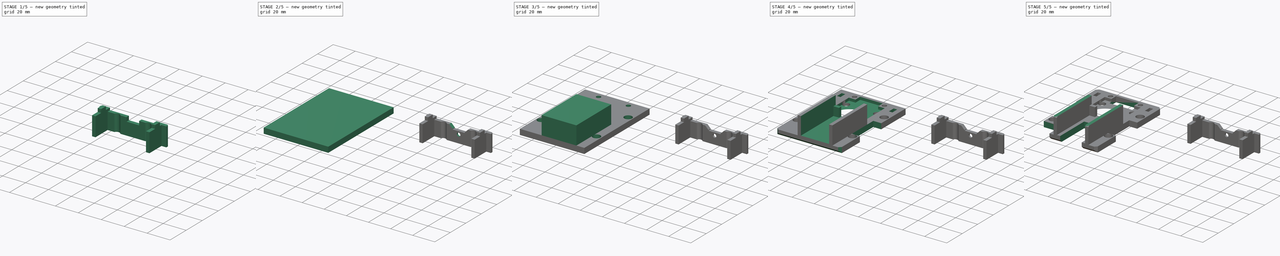
[diagram: build sequence overview — one tinted view per stage of 5, left to right]
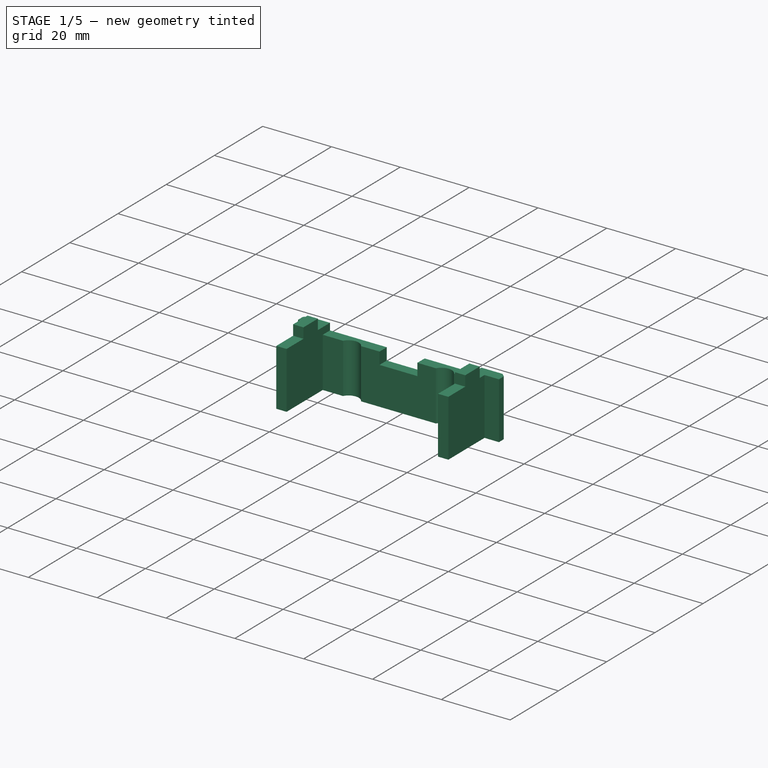
[diagram: stage 1 of 5 — iso view after this stage's code; geometry added in this stage tinted green]
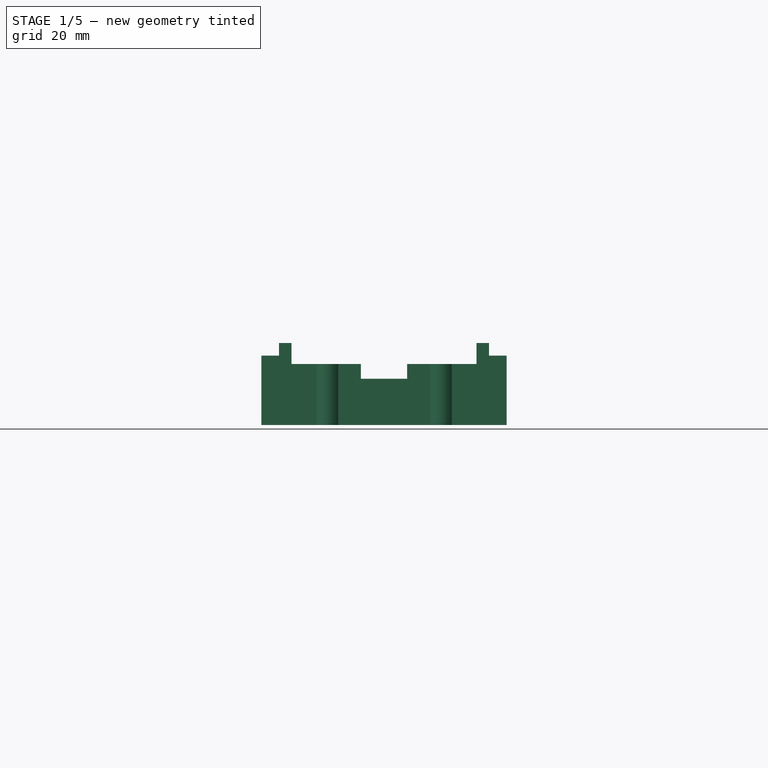
[diagram: stage 1 of 5 — front view after this stage's code; geometry added in this stage tinted green]
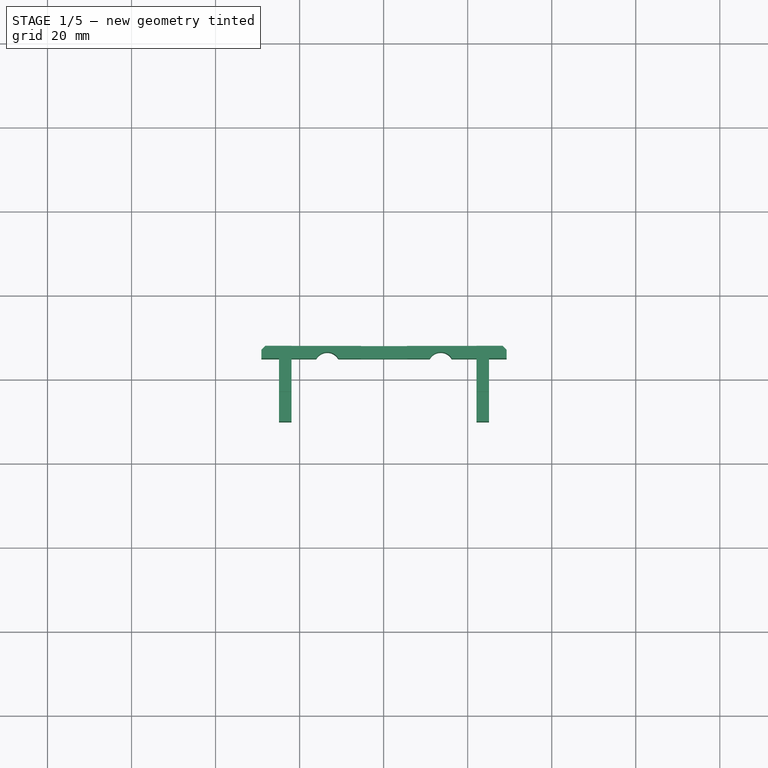
[diagram: stage 1 of 5 — top view after this stage's code; geometry added in this stage tinted green]
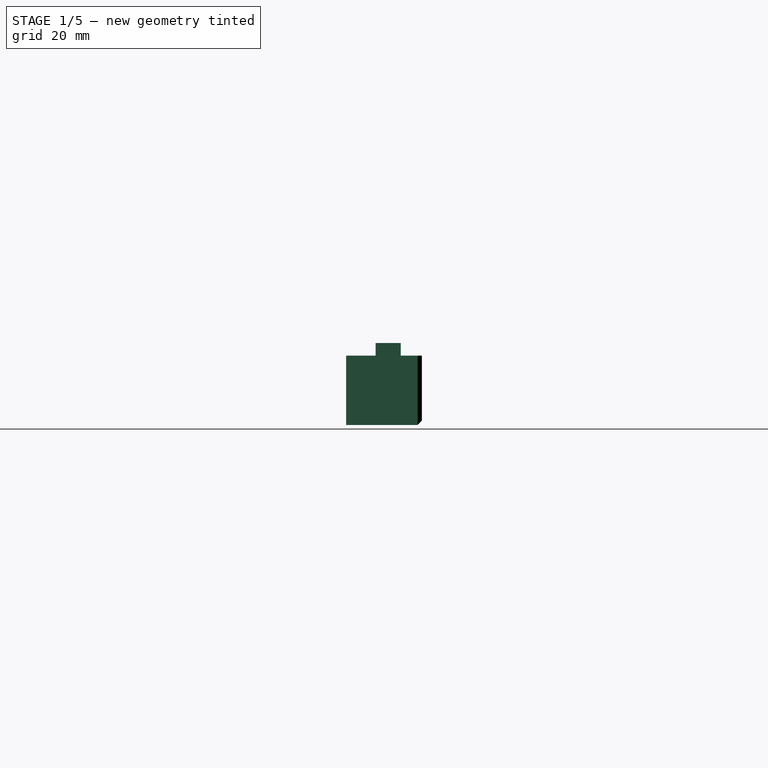
[diagram: stage 1 of 5 — right view after this stage's code; geometry added in this stage tinted green]
FCSTD DOCUMENT  (FreeCAD 0.18.4R)
Label: frame
License: All rights reserved
LicenseURL: http://en.wikipedia.org/wiki/All_rights_reserved
objects: Sketcher::SketchObject×26, PartDesign::Pocket×18, PartDesign::Chamfer×6, PartDesign::Pad×5, PartDesign::Body×2, PartDesign::SubtractiveLoft×1, PartDesign::Point×1
note: 83 computed .brp shape members not serialized (recipe doc carries the construction recipe); baked Part::Feature solids carry a one-line shape summary decoded from their .brp

FEATURE [Sketcher::SketchObject] Sketch013
  MapMode = 5
  Support = -> [XY_Plane001]
  sketch-geometry (4):
    g0: LineSegment StartX=70.886 StartY=27.8923 StartZ=0 EndX=129.276 EndY=27.8923 EndZ=0
    g1: LineSegment StartX=129.276 StartY=27.8923 StartZ=0 EndX=129.276 EndY=24.8923 EndZ=0
    g2: LineSegment StartX=129.276 StartY=24.8923 StartZ=0 EndX=70.886 EndY=24.8923 EndZ=0
    g3: LineSegment StartX=70.886 StartY=24.8923 StartZ=0 EndX=70.886 EndY=27.8923 EndZ=0
  constraints (12):
    c: Coincident(g0,g1)
    c: Coincident(g1,g2)
    c: Coincident(g2,g3)
    c: Coincident(g3,g0)
    c: Horizontal(g0)
    c: Horizontal(g2)
    c: Vertical(g1)
    c: Vertical(g3)
    c: DistanceY(g3,g3) = 3
    c: DistanceX(g0,g0) = 58.39
    c: DistanceX(g2) = 70.886
    c: DistanceY(g2) = 24.8923
FEATURE [PartDesign::Pad] Pad002
  Length = 16.5
  Length2 = 100
  Profile = -> Sketch013
  Refine = true
  Type = 0
FEATURE [PartDesign::Point] DatumPoint
  AttacherType = Attacher::AttachEnginePoint
  MapMode = 37
  Placement = pos=(100.081,26.3923,16.5) rot=(0,0,1;0rad)
  Support = -> [Pad002]
FEATURE [Sketcher::SketchObject] Sketch014
  ExternalGeometry = -> [Pad002,DatumPoint]
  MapMode = 5
  Placement = pos=(0,0,16.5) rot=(0,0,1;0rad)
  Support = -> [Pad002]
  sketch-geometry (8):
    g0: LineSegment StartX=122.081 StartY=24.8923 StartZ=0 EndX=125.081 EndY=24.8923 EndZ=0
    g1: LineSegment StartX=125.081 StartY=24.8923 StartZ=0 EndX=125.081 EndY=9.8923 EndZ=0
    g2: LineSegment StartX=125.081 StartY=9.8923 StartZ=0 EndX=122.081 EndY=9.8923 EndZ=0
    g3: LineSegment StartX=122.081 StartY=9.8923 StartZ=0 EndX=122.081 EndY=24.8923 EndZ=0
    g4: LineSegment StartX=75.081 StartY=24.8923 StartZ=0 EndX=78.081 EndY=24.8923 EndZ=0
    g5: LineSegment StartX=78.081 StartY=24.8923 StartZ=0 EndX=78.081 EndY=9.8923 EndZ=0
    g6: LineSegment StartX=78.081 StartY=9.8923 StartZ=0 EndX=75.081 EndY=9.8923 EndZ=0
    g7: LineSegment StartX=75.081 StartY=9.8923 StartZ=0 EndX=75.081 EndY=24.8923 EndZ=0
  constraints (24):
    c: Coincident(g0,g1)
    c: Coincident(g1,g2)
    c: Coincident(g2,g3)
    c: Coincident(g3,g0)
    c: Horizontal(g0)
    c: Horizontal(g2)
    c: Vertical(g1)
    c: Vertical(g3)
    c: PointOnObject(g0,g-3)
    c: DistanceX(g-4,g0) = 22
    c: DistanceX(g2,g2) = 3
    c: DistanceY(g1,g1) = 15
    c: Coincident(g4,g5)
    c: Coincident(g5,g6)
    c: Coincident(g6,g7)
    c: Coincident(g7,g4)
    c: Horizontal(g4)
    c: Horizontal(g6)
    c: Vertical(g5)
    c: Vertical(g7)
    c: PointOnObject(g4,g-3)
    c: DistanceX(g4,g-4) = 22
    c: DistanceX(g6,g6) = 3
    c: DistanceY(g5,g5) = 15
FEATURE [PartDesign::Pad] Pad003
  BaseFeature = -> Pad002
  Length = 16.5
  Length2 = 100
  Profile = -> Sketch014
  Refine = true
  Reversed = true
  Type = 0
FEATURE [Sketcher::SketchObject] Sketch015
  ExternalGeometry = -> [Pad003,DatumPoint]
  MapMode = 5
  Placement = pos=(0,24.8923,0) rot=(1,0,0;1.5708rad)
  Support = -> [Pad003]
  sketch-geometry (8):
    g0: LineSegment StartX=78.081 StartY=16.5 StartZ=0 EndX=78.081 EndY=14.5 EndZ=0
    g1: LineSegment StartX=78.081 StartY=14.5 StartZ=0 EndX=94.581 EndY=14.5 EndZ=0
    g2: LineSegment StartX=94.581 StartY=14.5 StartZ=0 EndX=94.581 EndY=11 EndZ=0
    g3: LineSegment StartX=94.581 StartY=11 StartZ=0 EndX=105.581 EndY=11 EndZ=0
    g4: LineSegment StartX=105.581 StartY=11 StartZ=0 EndX=105.581 EndY=14.5 EndZ=0
    g5: LineSegment StartX=105.581 StartY=14.5 StartZ=0 EndX=122.081 EndY=14.5 EndZ=0
    g6: LineSegment StartX=122.081 StartY=14.5 StartZ=0 EndX=122.081 EndY=16.5 EndZ=0
    g7: LineSegment StartX=122.081 StartY=16.5 StartZ=0 EndX=78.081 EndY=16.5 EndZ=0
  constraints (22):
    c: Coincident(g-4,g0)
    c: PointOnObject(g0,g-3)
    c: Coincident(g0,g1)
    c: Horizontal(g1)
    c: Coincident(g1,g2)
    c: Vertical(g2)
    c: Coincident(g2,g3)
    c: Horizontal(g3)
    c: Coincident(g3,g4)
    c: Vertical(g4)
    c: Coincident(g4,g5)
    c: Horizontal(g5)
    c: Coincident(g5,g6)
    c: Coincident(g6,g-4)
    c: Coincident(g6,g7)
    c: Coincident(g7,g0)
    c: Vertical(g6)
    c: Equal(g0,g6)
    c: DistanceY(g0,g0) = 2
    c: DistanceY(g2,g2) = 3.5
    c: Equal(g5,g1)
    c: DistanceX(g3,g3) = 11
FEATURE [PartDesign::Pocket] Pocket007
  BaseFeature = -> Pad003
  Length = 5
  Length2 = 100
  Profile = -> Sketch015
  Refine = true
  Type = 1
FEATURE [Sketcher::SketchObject] Sketch016
  ExternalGeometry = -> [Pad003,DatumPoint]
  MapMode = 5
  Placement = pos=(0,0,16.5) rot=(0,0,1;0rad)
  Support = -> [Pad003]
  sketch-geometry (8):
    g0: LineSegment StartX=75.081 StartY=22.8923 StartZ=0 EndX=78.081 EndY=22.8923 EndZ=0
    g1: LineSegment StartX=78.081 StartY=22.8923 StartZ=0 EndX=78.081 EndY=16.8923 EndZ=0
    g2: LineSegment StartX=78.081 StartY=16.8923 StartZ=0 EndX=75.081 EndY=16.8923 EndZ=0
    g3: LineSegment StartX=75.081 StartY=16.8923 StartZ=0 EndX=75.081 EndY=22.8923 EndZ=0
    g4: LineSegment StartX=122.081 StartY=22.8923 StartZ=0 EndX=125.081 EndY=22.8923 EndZ=0
    g5: LineSegment StartX=125.081 StartY=22.8923 StartZ=0 EndX=125.081 EndY=16.8923 EndZ=0
    g6: LineSegment StartX=125.081 StartY=16.8923 StartZ=0 EndX=122.081 EndY=16.8923 EndZ=0
    g7: LineSegment StartX=122.081 StartY=16.8923 StartZ=0 EndX=122.081 EndY=22.8923 EndZ=0
  constraints (27):
    c: Coincident(g0,g1)
    c: Coincident(g1,g2)
    c: Coincident(g2,g3)
    c: Coincident(g3,g0)
    c: Horizontal(g0)
    c: Horizontal(g2)
    c: Vertical(g1)
    c: Vertical(g3)
    c: PointOnObject(g0,g-3)
    c: PointOnObject(g1,g-4)
    c: Coincident(g4,g5)
    c: Coincident(g5,g6)
    c: Coincident(g6,g7)
    c: Coincident(g7,g4)
    c: Horizontal(g4)
    c: Horizontal(g6)
    c: Vertical(g5)
    c: Vertical(g7)
    c: PointOnObject(g4,g-5)
    c: PointOnObject(g5,g-6)
    c: Equal(g1,g7)
    c: DistanceY(g3,g3) = 6
    c: Horizontal(g0,g4)
    c: DistanceY(g0,g-7) = 5
    c: DistanceX(g0,g-8) = 22
    c: DistanceX(g-8,g6) = 22
    c: DistanceY(g0,g-7) = 5
FEATURE [PartDesign::Pad] Pad004
  BaseFeature = -> Pocket007
  Length = 3
  Length2 = 100
  Profile = -> Sketch016
  Refine = true
  Type = 0
FEATURE [PartDesign::Chamfer] Chamfer003
  Base = -> Pad004 [Edge2,Edge1,Edge12]
  BaseFeature = -> Pad004
  Size = 1
FEATURE [Sketcher::SketchObject] Sketch020
  ExternalGeometry = -> [Chamfer003,DatumPoint]
  MapMode = 5
  Support = -> [XY_Plane001]
  sketch-geometry (3):
    g0: Circle CenterX=86.581 CenterY=23.4223 CenterZ=0 NormalX=0 NormalY=0 NormalZ=1 AngleXU=0 Radius=3
    g1: Circle CenterX=113.581 CenterY=23.4223 CenterZ=0 NormalX=0 NormalY=0 NormalZ=1 AngleXU=0 Radius=3
    g2: GeomPoint X=100.081 Y=23.4223 Z=0
  constraints (7):
    c: Equal(g1,g0)
    c: Radius(g0) = 3
    c: Horizontal(g1,g0)
    c: DistanceY(g0,g-3) = 4.47
    c: DistanceX(g0,g1) = 27
    c: Symmetric(g1,g0,g2)
    c: Vertical(g2,g-4)
FEATURE [PartDesign::Pocket] Pocket011
  BaseFeature = -> Chamfer003
  Length = 5
  Length2 = 100
  Midplane = true
  Profile = -> Sketch020
  Refine = true
  Type = 1
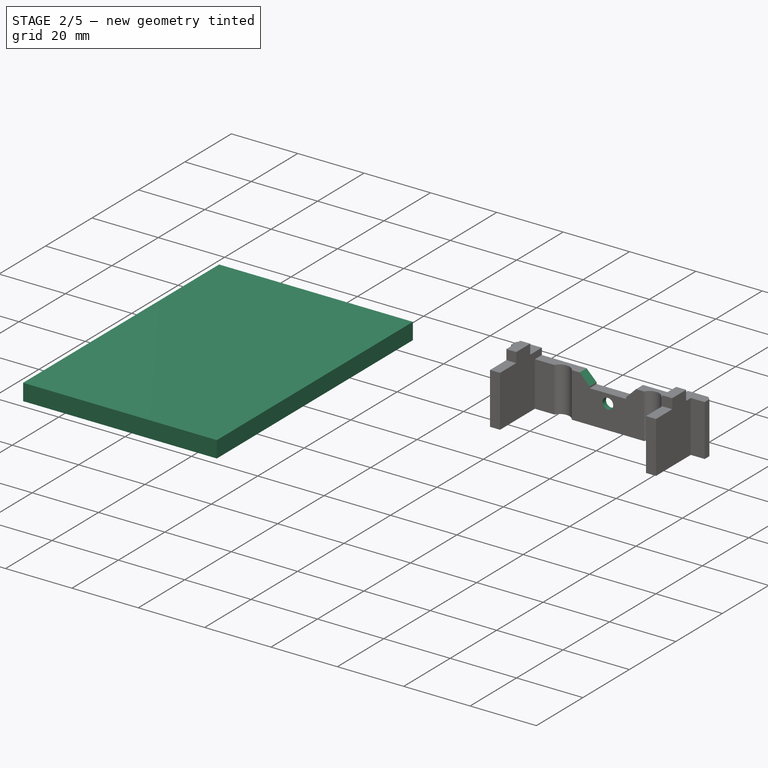
[diagram: stage 2 of 5 — iso view after this stage's code; geometry added in this stage tinted green]
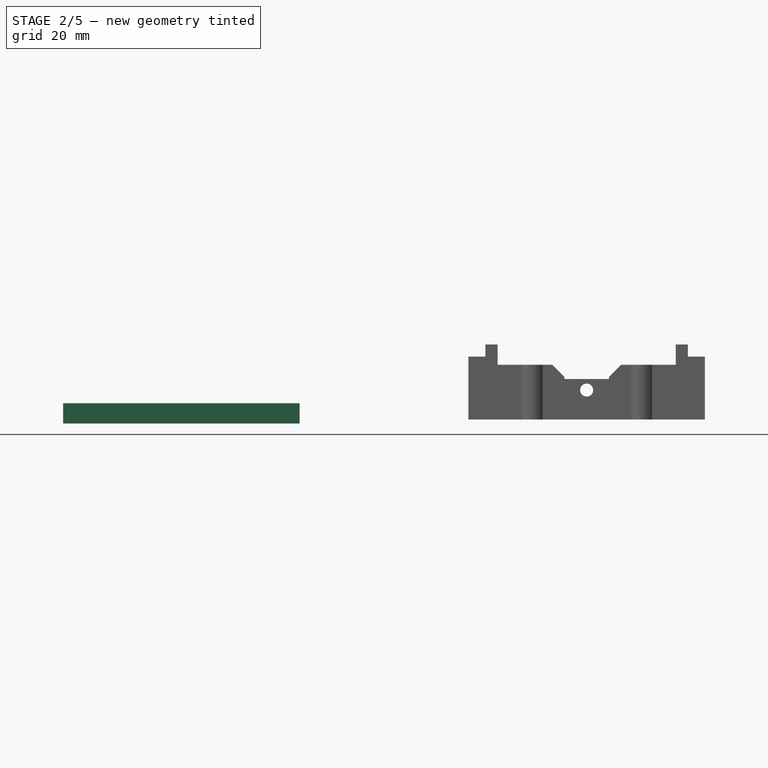
[diagram: stage 2 of 5 — front view after this stage's code; geometry added in this stage tinted green]
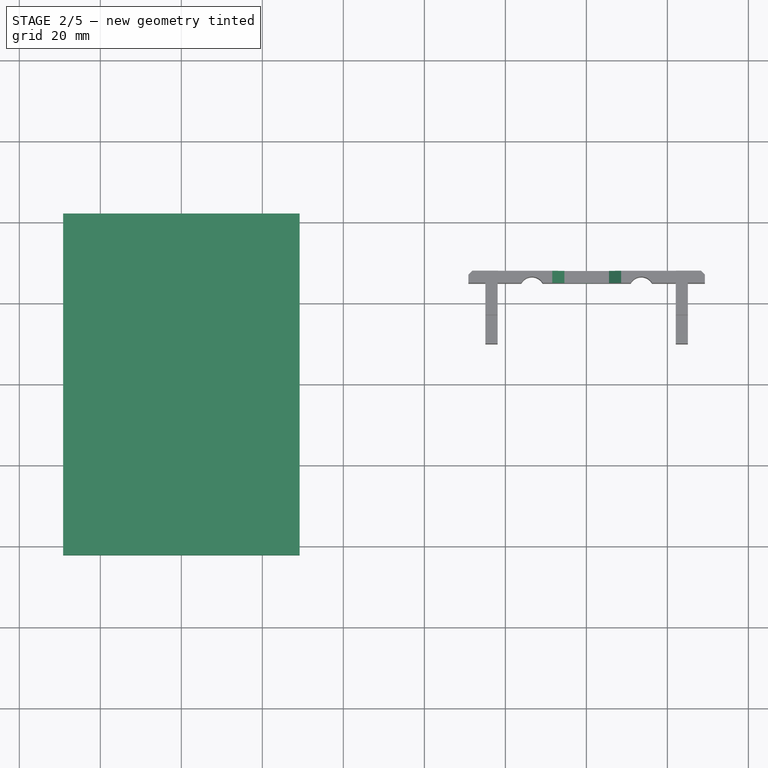
[diagram: stage 2 of 5 — top view after this stage's code; geometry added in this stage tinted green]
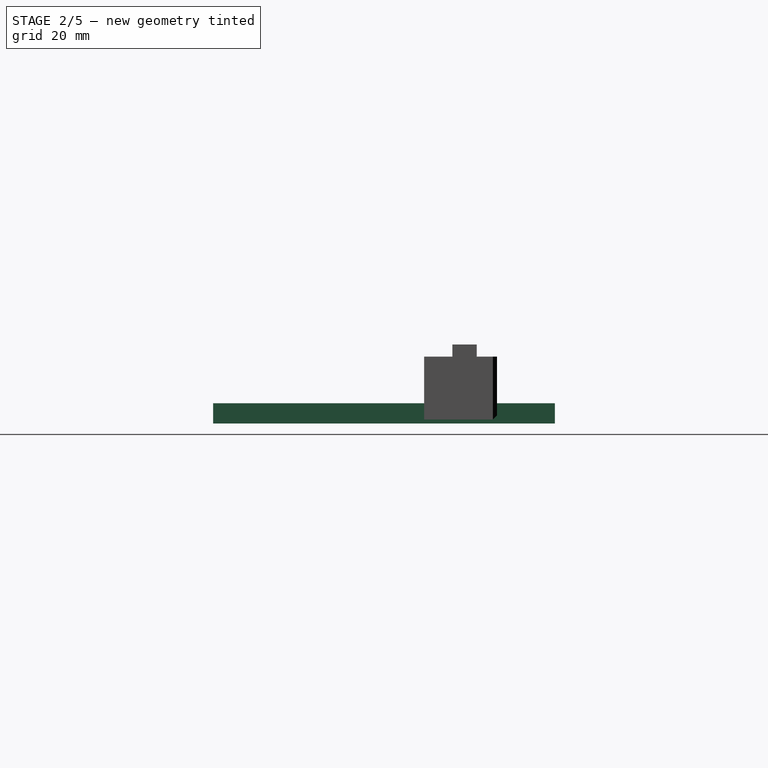
[diagram: stage 2 of 5 — right view after this stage's code; geometry added in this stage tinted green]
FEATURE [Sketcher::SketchObject] Sketch
  MapMode = 5
  Support = -> [XY_Plane]
  sketch-geometry (4):
    g0: LineSegment StartX=-29.195 StartY=42.185 StartZ=0 EndX=29.195 EndY=42.185 EndZ=0
    g1: LineSegment StartX=29.195 StartY=42.185 StartZ=0 EndX=29.195 EndY=-42.185 EndZ=0
    g2: LineSegment StartX=29.195 StartY=-42.185 StartZ=0 EndX=-29.195 EndY=-42.185 EndZ=0
    g3: LineSegment StartX=-29.195 StartY=-42.185 StartZ=0 EndX=-29.195 EndY=42.185 EndZ=0
  constraints (11):
    c: Coincident(g0,g1)
    c: Coincident(g1,g2)
    c: Coincident(g2,g3)
    c: Coincident(g3,g0)
    c: Horizontal(g0)
    c: Horizontal(g2)
    c: Vertical(g1)
    c: Vertical(g3)
    c: DistanceY(g3,g3) = 84.37
    c: DistanceX(g2,g2) = 58.39
    c: Symmetric(g2,g0,g-1)
FEATURE [PartDesign::Pad] Pad  label="Block"
  Length = 5
  Length2 = 100
  Profile = -> Sketch
  Refine = true
  Type = 0
FEATURE [Sketcher::SketchObject] Sketch021
  ExternalGeometry = -> [Pocket011]
  MapMode = 5
  Placement = pos=(0,27.8923,0) rot=(0,0.707107,0.707107;3.14159rad)
  Support = -> [Pocket011]
  sketch-geometry (9):
    g0: GeomPoint X=-94.581 Y=12.75 Z=0
    g1: GeomPoint X=-100.081 Y=11 Z=0
    g2: LineSegment StartX=-96.9055 StartY=7.75 StartZ=0 EndX=-98.4932 EndY=10.5 EndZ=0
    g3: LineSegment StartX=-98.4932 StartY=10.5 StartZ=0 EndX=-101.669 EndY=10.5 EndZ=0
    g4: LineSegment StartX=-101.669 StartY=10.5 StartZ=0 EndX=-103.256 EndY=7.75 EndZ=0
    g5: LineSegment StartX=-103.256 StartY=7.75 StartZ=0 EndX=-101.669 EndY=5 EndZ=0
    g6: LineSegment StartX=-101.669 StartY=5 StartZ=0 EndX=-98.4932 EndY=5 EndZ=0
    g7: LineSegment StartX=-98.4932 StartY=5 StartZ=0 EndX=-96.9055 EndY=7.75 EndZ=0
    g8: Circle [constr] CenterX=-100.081 CenterY=7.75 CenterZ=0 NormalX=0 NormalY=0 NormalZ=1 AngleXU=0 Radius=3.17543
  constraints (19):
    c: Symmetric(g-4,g-4,g0)
    c: Symmetric(g-4,g-3,g1)
    c: Coincident(g2,g3)
    c: Coincident(g3,g4)
    c: Coincident(g4,g5)
    c: Coincident(g5,g6)
    c: Coincident(g6,g7)
    c: Coincident(g7,g2)
    c: Equal(g2, g3-g7) x5
    c: PointOnObject(g2,g8)
    c: PointOnObject(g3,g8)
    c: PointOnObject(g4,g8)
    c: PointOnObject(g5,g8)
    c: PointOnObject(g6,g8)
    c: PointOnObject(g7,g8)
    c: Horizontal(g3)
    c: Vertical(g1,g8)
    c: DistanceY(g8,g0) = 5
    c: DistanceY(g5,g3) = 5.5
FEATURE [PartDesign::Pocket] Pocket012
  BaseFeature = -> Pocket011
  Length = 1.5
  Length2 = 100
  Profile = -> Sketch021
  Refine = true
  Type = 0
FEATURE [Sketcher::SketchObject] Sketch022
  ExternalGeometry = -> [Pocket012]
  MapMode = 5
  Placement = pos=(0,26.3923,-1.7e-14) rot=(0,0.707107,0.707107;3.14159rad)
  Support = -> [Pocket012]
  sketch-geometry (2):
    g0: GeomPoint X=-100.081 Y=8.25 Z=0
    g1: Circle CenterX=-100.081 CenterY=8.25 CenterZ=0 NormalX=0 NormalY=0 NormalZ=1 AngleXU=0 Radius=1.6
  constraints (3):
    c: Symmetric(g-3,g-4,g0)
    c: Coincident(g1,g0)
    c: Diameter(g1) = 3.2
FEATURE [PartDesign::Pocket] Pocket013
  BaseFeature = -> Pocket012
  Length = 5
  Length2 = 100
  Profile = -> Sketch022
  Refine = true
  Type = 1
FEATURE [Sketcher::SketchObject] Sketch024
  ExternalGeometry = -> [Pocket013]
  MapMode = 5
  Placement = pos=(0,27.8923,0) rot=(0,0.707107,0.707107;3.14159rad)
  Support = -> [Pocket013]
  sketch-geometry (4):
    g0: LineSegment StartX=-129.276 StartY=0 StartZ=0 EndX=-70.886 EndY=-2e-16 EndZ=0
    g1: LineSegment StartX=-70.886 StartY=-2e-16 StartZ=0 EndX=-70.886 EndY=1 EndZ=0
    g2: LineSegment StartX=-70.886 StartY=1 StartZ=0 EndX=-129.276 EndY=1 EndZ=0
    g3: LineSegment StartX=-129.276 StartY=1 StartZ=0 EndX=-129.276 EndY=0 EndZ=0
  constraints (10):
    c: Coincident(g0,g1)
    c: Coincident(g1,g2)
    c: Coincident(g2,g3)
    c: Coincident(g3,g0)
    c: Horizontal(g2)
    c: Vertical(g1)
    c: Vertical(g3)
    c: Coincident(g0,g-3)
    c: Coincident(g0,g-3)
    c: DistanceY(g1,g1) = 1
FEATURE [PartDesign::Pocket] Pocket015
  BaseFeature = -> Pocket013
  Length = 5
  Length2 = 100
  Profile = -> Sketch024
  Refine = true
  Type = 1
FEATURE [PartDesign::Chamfer] Chamfer006
  Base = -> Pocket015 [Edge4]
  BaseFeature = -> Pocket015
  Size = 1
FEATURE [PartDesign::Body] Body  label="Base"
  Group = -> [Sketch,Pad,Sketch001,Pocket,Sketch002,Pocket001,Sketch003,Pocket002,Sketch004,Pad001,Sketch008,Pocket003,Sketch009,SubtractiveLoft,Sketch010,Pocket004,Sketch011,Pocket005,Sketch017,Pocket008,Sketch018,Pocket009,Sketch019,Pocket010,Chamfer,Chamfer004,Chamfer005,Sketch023,Pocket014,Sketch025,Pocket016,Sketch026,Sketch027,Pocket017,Sketch028,Pocket018]
  Origin = -> Origin
  Tip = -> Pocket018
FEATURE [PartDesign::Chamfer] Chamfer007
  Base = -> Chamfer006 [Edge61,Edge47]
  BaseFeature = -> Chamfer006
  Size = 3
FEATURE [PartDesign::Body] Body001  label="Cage"
  Group = -> [Sketch013,Pad002,DatumPoint,Sketch014,Pad003,Sketch015,Pocket007,Sketch016,Pad004,Chamfer003,Sketch020,Pocket011,Sketch021,Pocket012,Sketch022,Pocket013,Sketch024,Pocket015,Chamfer006,Chamfer007]
  Origin = -> Origin001
  Placement = pos=(0,0,-1) rot=(0,0,1;0rad)
  Tip = -> Chamfer007
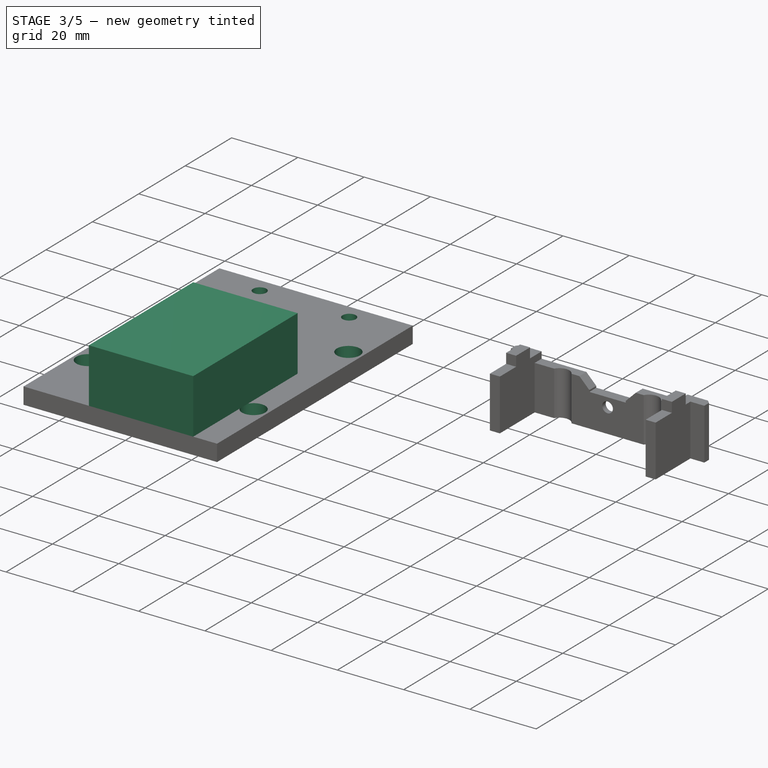
[diagram: stage 3 of 5 — iso view after this stage's code; geometry added in this stage tinted green]
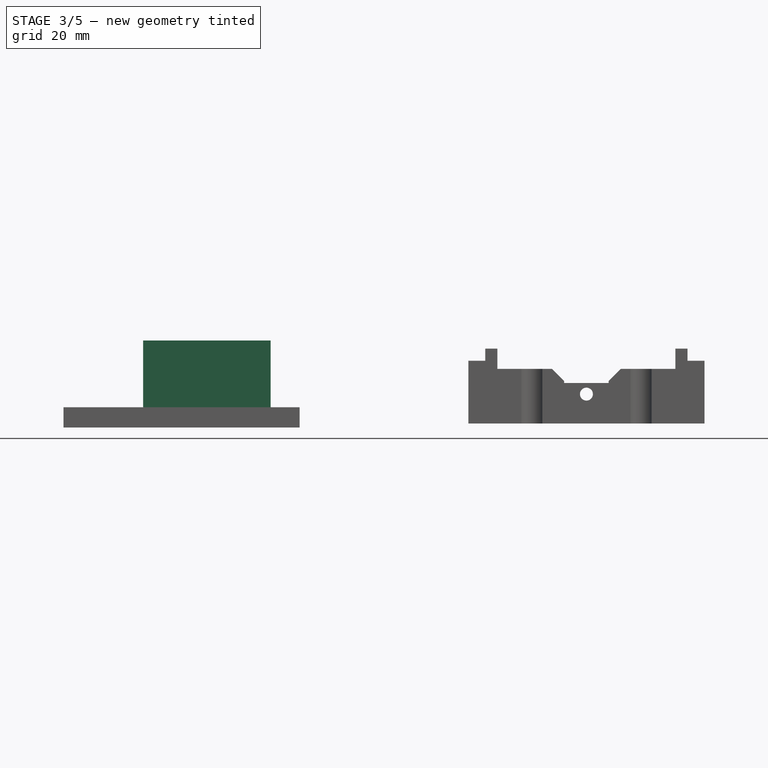
[diagram: stage 3 of 5 — front view after this stage's code; geometry added in this stage tinted green]
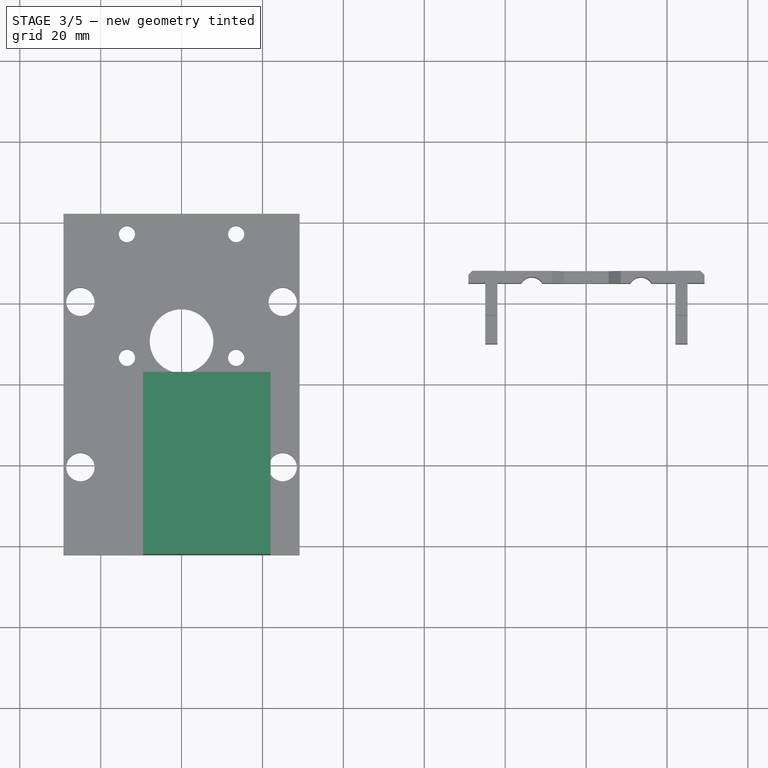
[diagram: stage 3 of 5 — top view after this stage's code; geometry added in this stage tinted green]
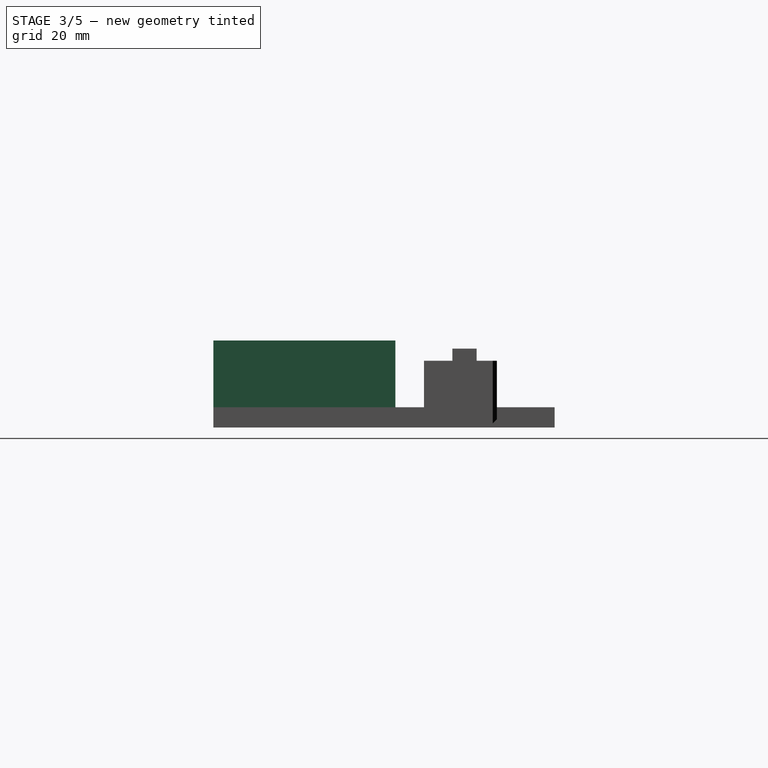
[diagram: stage 3 of 5 — right view after this stage's code; geometry added in this stage tinted green]
FEATURE [Sketcher::SketchObject] Sketch001
  MapMode = 5
  Placement = pos=(0,0,5) rot=(0,0,1;0rad)
  Support = -> [Pad]
  sketch-geometry (4):
    g0: Circle CenterX=-25 CenterY=20.435 CenterZ=0 NormalX=0 NormalY=0 NormalZ=1 AngleXU=0 Radius=3.5
    g1: Circle CenterX=25 CenterY=20.435 CenterZ=0 NormalX=0 NormalY=0 NormalZ=1 AngleXU=0 Radius=3.5
    g2: Circle CenterX=-25 CenterY=-20.435 CenterZ=0 NormalX=0 NormalY=0 NormalZ=1 AngleXU=0 Radius=3.5
    g3: Circle CenterX=25 CenterY=-20.435 CenterZ=0 NormalX=0 NormalY=0 NormalZ=1 AngleXU=0 Radius=3.5
  constraints (12):
    c: Radius(g0) = 3.5
    c: Equal(g0,g1)
    c: Equal(g0,g2)
    c: Equal(g0,g3)
    c: DistanceX(g0,g1) = 50
    c: DistanceY(g2,g0) = 40.87
    c: Symmetric(g0,g0,g-1)
    c: Symmetric(g3,g0,g-1)
    c: Horizontal(g1,g0)
    c: Vertical(g0,g2)
    c: Horizontal(g3,g2)
    c: Vertical(g3,g1)
FEATURE [PartDesign::Pocket] Pocket  label="Screw holes"
  BaseFeature = -> Pad
  Length = 5
  Length2 = 100
  Profile = -> Sketch001
  Refine = true
  Type = 1
FEATURE [Sketcher::SketchObject] Sketch002
  MapMode = 5
  Placement = pos=(0,0,0) rot=(1,0,0;3.14159rad)
  Support = -> [Pocket]
  sketch-geometry (4):
    g0: Circle CenterX=-14 CenterY=27 CenterZ=0 NormalX=0 NormalY=0 NormalZ=1 AngleXU=0 Radius=3
    g1: Circle CenterX=14 CenterY=27 CenterZ=0 NormalX=0 NormalY=0 NormalZ=1 AngleXU=0 Radius=3
    g2: Circle CenterX=-14 CenterY=-27 CenterZ=0 NormalX=0 NormalY=0 NormalZ=1 AngleXU=0 Radius=3
    g3: Circle CenterX=14 CenterY=-27 CenterZ=0 NormalX=0 NormalY=0 NormalZ=1 AngleXU=0 Radius=3
  constraints (11):
    c: Radius(g0) = 3
    c: Equal(g1,g0)
    c: Equal(g2,g0)
    c: Equal(g0,g3)
    c: Horizontal(g0,g1)
    c: Vertical(g0,g2)
    c: Horizontal(g3,g2)
    c: Vertical(g3,g1)
    c: Symmetric(g0,g3,g-1)
    c: DistanceX(g0,g1) = 28
    c: DistanceY(g3,g1) = 54
FEATURE [PartDesign::Pocket] Pocket001  label="Mount lugs"
  BaseFeature = -> Pocket
  Length = 4.5
  Length2 = 100
  Profile = -> Sketch002
  Refine = true
  Type = 0
FEATURE [Sketcher::SketchObject] Sketch003
  ExternalGeometry = -> [Pocket001]
  MapMode = 5
  Placement = pos=(0,0,0) rot=(1,0,0;3.14159rad)
  Support = -> [Pocket001]
  sketch-geometry (1):
    g0: Circle CenterX=-1e-15 CenterY=-10.6828 CenterZ=0 NormalX=0 NormalY=0 NormalZ=1 AngleXU=0 Radius=18.5
  constraints (3):
    c: Diameter(g0) = 37
    c: Tangent(g-3,g0)
    c: Tangent(g-4,g0)
FEATURE [PartDesign::Pocket] Pocket002  label="Speaker"
  BaseFeature = -> Pocket001
  Length = 0.5
  Length2 = 100
  Profile = -> Sketch003
  Refine = true
  Type = 0
FEATURE [Sketcher::SketchObject] Sketch004
  ExternalGeometry = -> [Pocket002]
  MapMode = 5
  Placement = pos=(0,0,5) rot=(0,0,1;0rad)
  Support = -> [Pocket002]
  sketch-geometry (4):
    g0: LineSegment StartX=22 StartY=-42.185 StartZ=0 EndX=-9.5 EndY=-42.185 EndZ=0
    g1: LineSegment StartX=-9.5 StartY=-42.185 StartZ=0 EndX=-9.5 EndY=2.815 EndZ=0
    g2: LineSegment StartX=-9.5 StartY=2.815 StartZ=0 EndX=22 EndY=2.815 EndZ=0
    g3: LineSegment StartX=22 StartY=2.815 StartZ=0 EndX=22 EndY=-42.185 EndZ=0
  constraints (12):
    c: Coincident(g0,g1)
    c: Coincident(g1,g2)
    c: Coincident(g0,g3)
    c: Coincident(g2,g3)
    c: DistanceY(g1,g1) = 45
    c: Horizontal(g2)
    c: Vertical(g1)
    c: Vertical(g3)
    c: Horizontal(g0)
    c: PointOnObject(g0,g-3)
    c: DistanceX(g1,g2) = 31.5
    c: DistanceX(g-1,g2) = 22
FEATURE [PartDesign::Pad] Pad001  label="Laser holder"
  BaseFeature = -> Pocket002
  Length = 16.5
  Length2 = 100
  Profile = -> Sketch004
  Refine = true
  Type = 0
FEATURE [Sketcher::SketchObject] Sketch008
  ExternalGeometry = -> [Pad001]
  MapMode = 5
  Placement = pos=(0,0,22) rot=(0,0,1;0rad)
  sketch-geometry (4):
    g0: Circle CenterX=-13.5 CenterY=37.185 CenterZ=0 NormalX=0 NormalY=0 NormalZ=1 AngleXU=0 Radius=2
    g1: Circle CenterX=13.5 CenterY=37.185 CenterZ=0 NormalX=0 NormalY=0 NormalZ=1 AngleXU=0 Radius=2
    g2: Circle CenterX=-13.5 CenterY=6.585 CenterZ=0 NormalX=0 NormalY=0 NormalZ=1 AngleXU=0 Radius=2
    g3: Circle CenterX=13.5 CenterY=6.585 CenterZ=0 NormalX=0 NormalY=0 NormalZ=1 AngleXU=0 Radius=2
  constraints (11):
    c: Diameter(g0) = 4
    c: Equal(g0,g1)
    c: Equal(g0,g2)
    c: Equal(g0,g3)
    c: Vertical(g2,g0)
    c: Horizontal(g1,g0)
    c: Vertical(g3,g1)
    c: Symmetric(g2,g3,g-2)
    c: DistanceY(g2,g0) = 30.6
    c: DistanceX(g2,g3) = 27
    c: DistanceY(g0,g-3) = 5
FEATURE [PartDesign::Pocket] Pocket003
  BaseFeature = -> Pad001
  Length = 0
  Length2 = 100
  Profile = -> Sketch008
  Refine = true
  Type = 1
FEATURE [Sketcher::SketchObject] Sketch009
  ExternalGeometry = -> [Pocket003]
  MapMode = 5
  Placement = pos=(0,0,5) rot=(0,0,1;0rad)
  Support = -> [Pocket003]
  sketch-geometry (1):
    g0: Circle CenterX=-1e-15 CenterY=10.6828 CenterZ=0 NormalX=0 NormalY=0 NormalZ=1 AngleXU=0 Radius=7.86783
  constraints (2):
    c: Coincident(g0,g-3)
    c: Tangent(g0,g-6)
FEATURE [Sketcher::SketchObject] CopySketch010
  Placement = pos=(0,0,0) rot=(1,0,0;3.14159rad)
  sketch-geometry (1):
    g0: Circle CenterX=-1e-15 CenterY=-10.6828 CenterZ=0 NormalX=0 NormalY=0 NormalZ=1 AngleXU=0 Radius=18.5
  constraints (1):
    c: Diameter(g0) = 37
FEATURE [PartDesign::SubtractiveLoft] SubtractiveLoft  label="Speaker cone"
  BaseFeature = -> Pocket003
  Closed = false
  Profile = -> CopySketch010
  Refine = true
  Ruled = false
  Sections = -> [Sketch009]
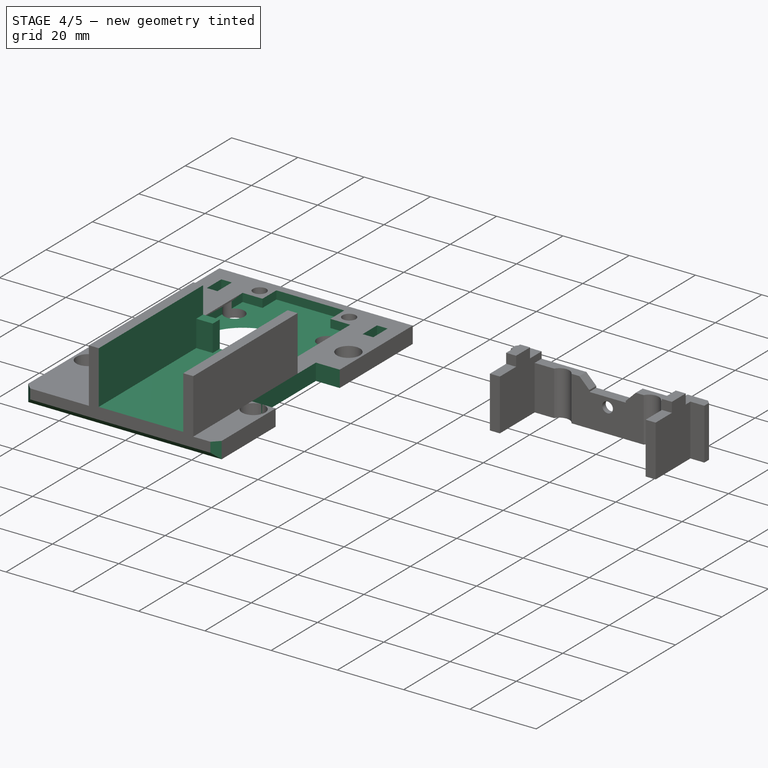
[diagram: stage 4 of 5 — iso view after this stage's code; geometry added in this stage tinted green]
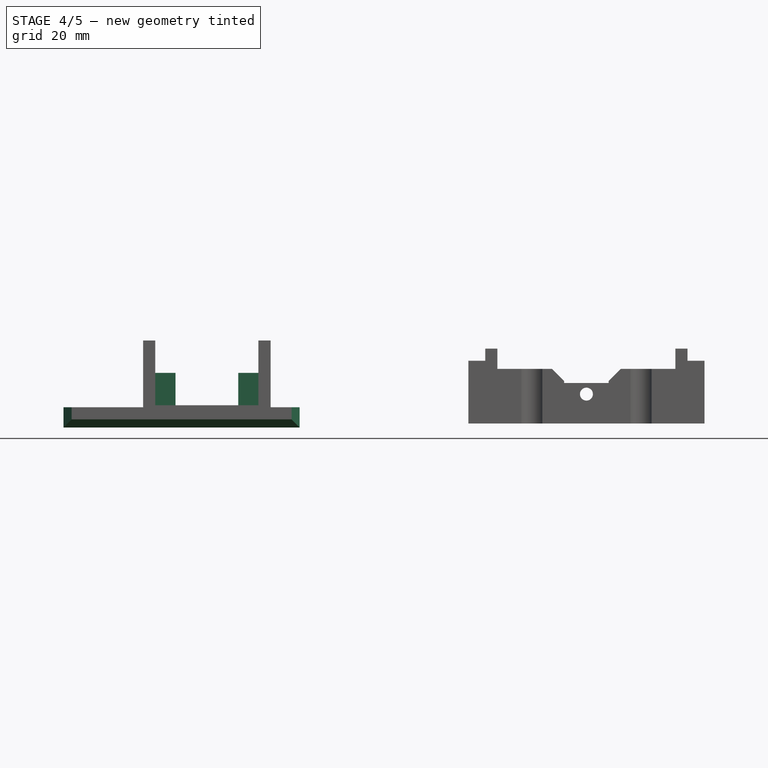
[diagram: stage 4 of 5 — front view after this stage's code; geometry added in this stage tinted green]
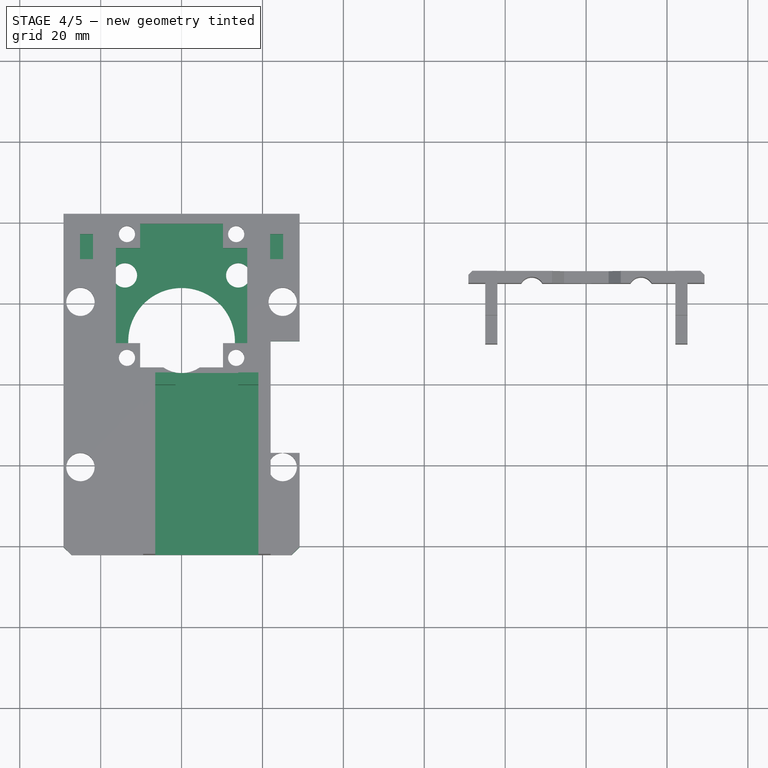
[diagram: stage 4 of 5 — top view after this stage's code; geometry added in this stage tinted green]
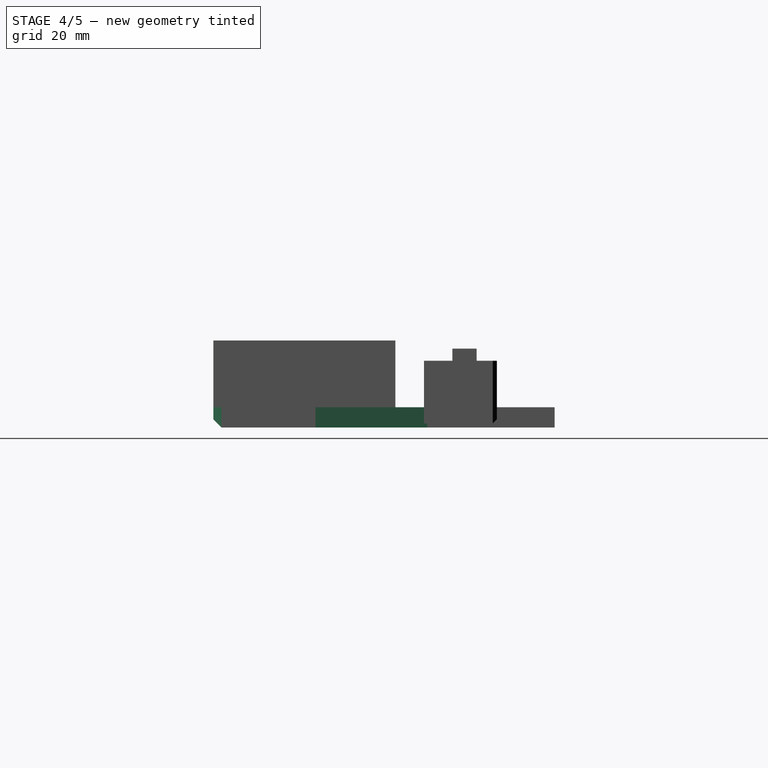
[diagram: stage 4 of 5 — right view after this stage's code; geometry added in this stage tinted green]
FEATURE [Sketcher::SketchObject] Sketch010
  ExternalGeometry = -> [SubtractiveLoft]
  MapMode = 5
  Placement = pos=(0,0,21.5) rot=(0,0,1;0rad)
  Support = -> [SubtractiveLoft]
  sketch-geometry (4):
    g0: LineSegment StartX=-6.5 StartY=2.815 StartZ=0 EndX=19 EndY=2.815 EndZ=0
    g1: LineSegment StartX=19 StartY=2.815 StartZ=0 EndX=19 EndY=-42.185 EndZ=0
    g2: LineSegment StartX=19 StartY=-42.185 StartZ=0 EndX=-6.5 EndY=-42.185 EndZ=0
    g3: LineSegment StartX=-6.5 StartY=-42.185 StartZ=0 EndX=-6.5 EndY=2.815 EndZ=0
  constraints (12):
    c: Coincident(g0,g1)
    c: Coincident(g1,g2)
    c: Coincident(g2,g3)
    c: Coincident(g3,g0)
    c: Horizontal(g0)
    c: Horizontal(g2)
    c: Vertical(g1)
    c: Vertical(g3)
    c: PointOnObject(g0,g-3)
    c: PointOnObject(g1,g-4)
    c: DistanceX(g-4,g2) = 3
    c: DistanceX(g1,g-4) = 3
FEATURE [PartDesign::Pocket] Pocket004
  BaseFeature = -> SubtractiveLoft
  Length = 8
  Length2 = 100
  Profile = -> Sketch010
  Refine = true
  Type = 0
FEATURE [Sketcher::SketchObject] Sketch011
  ExternalGeometry = -> [Pocket004]
  MapMode = 5
  Placement = pos=(0,0,13.5) rot=(0,0,1;0rad)
  Support = -> [Pocket004]
  sketch-geometry (8):
    g0: LineSegment StartX=-6.5 StartY=-42.185 StartZ=0 EndX=-6.5 EndY=-0.185 EndZ=0
    g1: LineSegment StartX=-6.5 StartY=-0.185 StartZ=0 EndX=-1.5 EndY=-0.185 EndZ=0
    g2: LineSegment StartX=-1.5 StartY=-0.185 StartZ=0 EndX=-1.5 EndY=2.815 EndZ=0
    g3: LineSegment StartX=-1.5 StartY=2.815 StartZ=0 EndX=14 EndY=2.815 EndZ=0
    g4: LineSegment StartX=14 StartY=2.815 StartZ=0 EndX=14 EndY=-0.185 EndZ=0
    g5: LineSegment StartX=14 StartY=-0.185 StartZ=0 EndX=19 EndY=-0.185 EndZ=0
    g6: LineSegment StartX=19 StartY=-0.185 StartZ=0 EndX=19 EndY=-42.185 EndZ=0
    g7: LineSegment StartX=19 StartY=-42.185 StartZ=0 EndX=-6.5 EndY=-42.185 EndZ=0
  constraints (22):
    c: Coincident(g-4,g0)
    c: Vertical(g0)
    c: Coincident(g0,g1)
    c: Horizontal(g1)
    c: Coincident(g1,g2)
    c: PointOnObject(g2,g-3)
    c: Vertical(g2)
    c: Coincident(g2,g3)
    c: PointOnObject(g3,g-3)
    c: Coincident(g3,g4)
    c: Vertical(g4)
    c: Coincident(g4,g5)
    c: Horizontal(g5)
    c: Coincident(g5,g6)
    c: Coincident(g6,g-4)
    c: Vertical(g6)
    c: Coincident(g6,g7)
    c: Coincident(g7,g0)
    c: Equal(g2,g4)
    c: DistanceY(g2,g2) = 3
    c: DistanceX(g1,g1) = 5
    c: DistanceX(g5,g5) = 5
FEATURE [PartDesign::Pocket] Pocket005
  BaseFeature = -> Pocket004
  Length = 8
  Length2 = 100
  Profile = -> Sketch011
  Refine = true
  Type = 0
FEATURE [Sketcher::SketchObject] Sketch017
  ExternalGeometry = -> [Pocket005]
  MapMode = 5
  Placement = pos=(0,0,5) rot=(0,0,1;0rad)
  Support = -> [Pocket005]
  sketch-geometry (4):
    g0: LineSegment StartX=22 StartY=-16.935 StartZ=0 EndX=29.195 EndY=-16.935 EndZ=0
    g1: LineSegment StartX=29.195 StartY=-16.935 StartZ=0 EndX=29.195 EndY=10.6828 EndZ=0
    g2: LineSegment StartX=29.195 StartY=10.6828 StartZ=0 EndX=22 EndY=10.6828 EndZ=0
    g3: LineSegment StartX=22 StartY=10.6828 StartZ=0 EndX=22 EndY=-16.935 EndZ=0
  constraints (12):
    c: Coincident(g0,g3)
    c: Coincident(g2,g3)
    c: Coincident(g0,g1)
    c: Coincident(g1,g2)
    c: Tangent(g0,g-6)
    c: PointOnObject(g-7,g3)
    c: PointOnObject(g1,g-8)
    c: Vertical(g1)
    c: Vertical(g3)
    c: Horizontal(g2)
    c: Horizontal(g0)
    c: Horizontal(g2,g-4)
FEATURE [PartDesign::Pocket] Pocket008
  BaseFeature = -> Pocket005
  Length = 5
  Length2 = 100
  Profile = -> Sketch017
  Refine = true
  Type = 1
FEATURE [Sketcher::SketchObject] Sketch018
  ExternalGeometry = -> [Pocket008]
  MapMode = 5
  Placement = pos=(0,0,5) rot=(0,0,1;0rad)
  Support = -> [Pocket008]
  sketch-geometry (8):
    g0: LineSegment StartX=-25.1 StartY=37.185 StartZ=0 EndX=-21.9 EndY=37.185 EndZ=0
    g1: LineSegment StartX=-21.9 StartY=37.185 StartZ=0 EndX=-21.9 EndY=30.985 EndZ=0
    g2: LineSegment StartX=-21.9 StartY=30.985 StartZ=0 EndX=-25.1 EndY=30.985 EndZ=0
    g3: LineSegment StartX=-25.1 StartY=30.985 StartZ=0 EndX=-25.1 EndY=37.185 EndZ=0
    g4: LineSegment StartX=25.1 StartY=37.185 StartZ=0 EndX=21.9 EndY=37.185 EndZ=0
    g5: LineSegment StartX=21.9 StartY=37.185 StartZ=0 EndX=21.9 EndY=30.985 EndZ=0
    g6: LineSegment StartX=21.9 StartY=30.985 StartZ=0 EndX=25.1 EndY=30.985 EndZ=0
    g7: LineSegment StartX=25.1 StartY=30.985 StartZ=0 EndX=25.1 EndY=37.185 EndZ=0
  constraints (24):
    c: Coincident(g0,g1)
    c: Coincident(g1,g2)
    c: Coincident(g2,g3)
    c: Coincident(g3,g0)
    c: Horizontal(g0)
    c: Horizontal(g2)
    c: Vertical(g1)
    c: Vertical(g3)
    c: Coincident(g4,g5)
    c: Coincident(g5,g6)
    c: Coincident(g6,g7)
    c: Coincident(g7,g4)
    c: Horizontal(g4)
    c: Horizontal(g6)
    c: Vertical(g5)
    c: Vertical(g7)
    c: Equal(g4,g0)
    c: Equal(g1,g5)
    c: DistanceX(g2,g2) = 3.2
    c: DistanceY(g3,g3) = 6.2
    c: Horizontal(g4,g0)
    c: DistanceX(g1,g-1) = 21.9
    c: DistanceX(g-1,g5) = 21.9
    c: DistanceY(g4,g-3) = 5
FEATURE [PartDesign::Pocket] Pocket009
  BaseFeature = -> Pocket008
  Length = 3.4
  Length2 = 100
  Profile = -> Sketch018
  Refine = true
  Type = 0
FEATURE [Sketcher::SketchObject] Sketch019
  ExternalGeometry = -> [Pocket009]
  MapMode = 5
  Placement = pos=(0,0,5) rot=(0,0,1;0rad)
  Support = -> [Pocket009]
  sketch-geometry (16):
    g0: LineSegment [constr] StartX=-16.25 StartY=6.215 StartZ=0 EndX=-16.25 EndY=37.715 EndZ=0
    g1: LineSegment [constr] StartX=-14.25 StartY=39.715 StartZ=0 EndX=14.25 EndY=39.715 EndZ=0
    g2: LineSegment [constr] StartX=16.25 StartY=37.715 StartZ=0 EndX=16.25 EndY=6.215 EndZ=0
    g3: LineSegment [constr] StartX=14.25 StartY=4.215 StartZ=0 EndX=-14.25 EndY=4.215 EndZ=0
    g4: LineSegment StartX=-16.25 StartY=33.715 StartZ=0 EndX=-10.25 EndY=33.715 EndZ=0
    g5: LineSegment StartX=-10.25 StartY=33.715 StartZ=0 EndX=-10.25 EndY=39.715 EndZ=0
    g6: LineSegment StartX=-10.25 StartY=39.715 StartZ=0 EndX=10.25 EndY=39.715 EndZ=0
    g7: LineSegment StartX=10.25 StartY=39.715 StartZ=0 EndX=10.25 EndY=33.715 EndZ=0
    g8: LineSegment StartX=10.25 StartY=33.715 StartZ=0 EndX=16.25 EndY=33.715 EndZ=0
    g9: LineSegment StartX=16.25 StartY=33.715 StartZ=0 EndX=16.25 EndY=10.215 EndZ=0
    g10: LineSegment StartX=16.25 StartY=10.215 StartZ=0 EndX=10.25 EndY=10.215 EndZ=0
    g11: LineSegment StartX=10.25 StartY=10.215 StartZ=0 EndX=10.25 EndY=4.215 EndZ=0
    g12: LineSegment StartX=10.25 StartY=4.215 StartZ=0 EndX=-10.25 EndY=4.215 EndZ=0
    g13: LineSegment StartX=-10.25 StartY=4.215 StartZ=0 EndX=-10.25 EndY=10.215 EndZ=0
    g14: LineSegment StartX=-10.25 StartY=10.215 StartZ=0 EndX=-16.25 EndY=10.215 EndZ=0
    g15: LineSegment StartX=-16.25 StartY=10.215 StartZ=0 EndX=-16.25 EndY=33.715 EndZ=0
  constraints (52):
    c: PointOnObject(g0,g-6)
    c: Vertical(g0)
    c: Horizontal(g1)
    c: Vertical(g2)
    c: Horizontal(g3)
    c: Tangent(g-3,g0)
    c: PointOnObject(g0,g-3)
    c: Tangent(g3,g-6)
    c: PointOnObject(g3,g-6)
    c: PointOnObject(g3,g-5)
    c: Tangent(g-5,g2)
    c: PointOnObject(g2,g-5)
    c: PointOnObject(g2,g-4)
    c: PointOnObject(g1,g-4)
    c: Tangent(g-4,g1)
    c: PointOnObject(g1,g-3)
    c: PointOnObject(g4,g0)
    c: Horizontal(g4)
    c: Coincident(g4,g5)
    c: Vertical(g5)
    c: Coincident(g5,g6)
    c: PointOnObject(g6,g1)
    c: Horizontal(g6)
    c: Coincident(g6,g7)
    c: Vertical(g7)
    c: Coincident(g7,g8)
    c: Horizontal(g8)
    c: Coincident(g8,g9)
    c: PointOnObject(g9,g2)
    c: Vertical(g9)
    c: Coincident(g9,g10)
    c: Horizontal(g10)
    c: Coincident(g10,g11)
    c: Vertical(g11)
    c: Coincident(g11,g12)
    c: Horizontal(g12)
    c: Coincident(g12,g13)
    c: Vertical(g13)
    c: Coincident(g13,g14)
    c: PointOnObject(g14,g0)
    c: Horizontal(g14)
    c: Coincident(g14,g15)
    c: Coincident(g15,g4)
    c: Equal(g4,g8)
    c: Equal(g10,g14)
    c: Equal(g4,g14)
    c: Equal(g5,g7)
    c: Equal(g4,g5)
    c: Equal(g13,g14)
    c: Equal(g11,g10)
    c: PointOnObject(g12,g3)
    c: DistanceX(g-3,g5) = 4
FEATURE [PartDesign::Pocket] Pocket010
  BaseFeature = -> Pocket009
  Length = 2.5
  Length2 = 100
  Profile = -> Sketch019
  Refine = true
  Type = 0
FEATURE [PartDesign::Chamfer] Chamfer
  Base = -> Pocket010 [Edge113,Edge23,Edge103]
  BaseFeature = -> Pocket010
  Size = 2
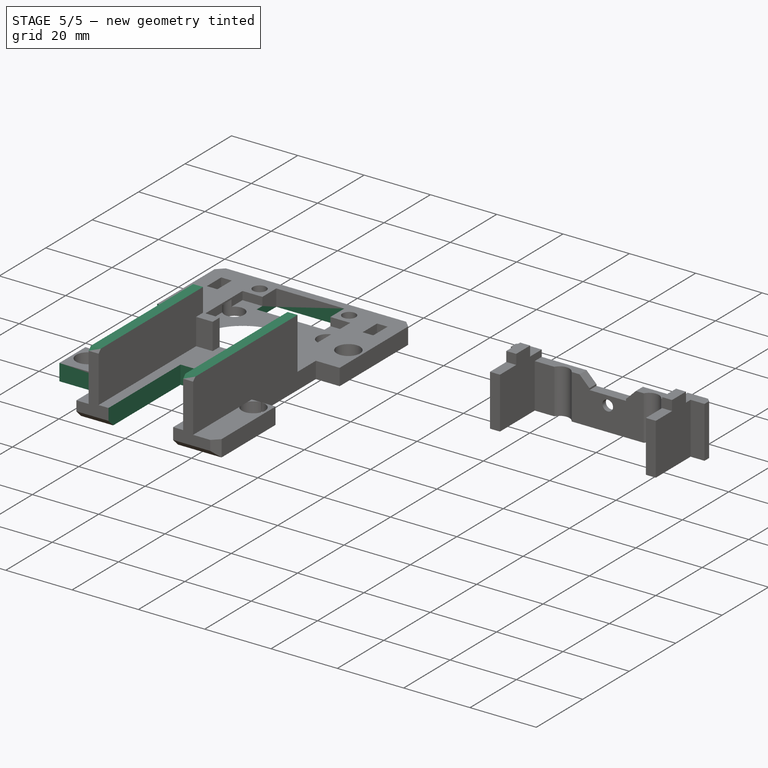
[diagram: stage 5 of 5 — iso view after this stage's code; geometry added in this stage tinted green]
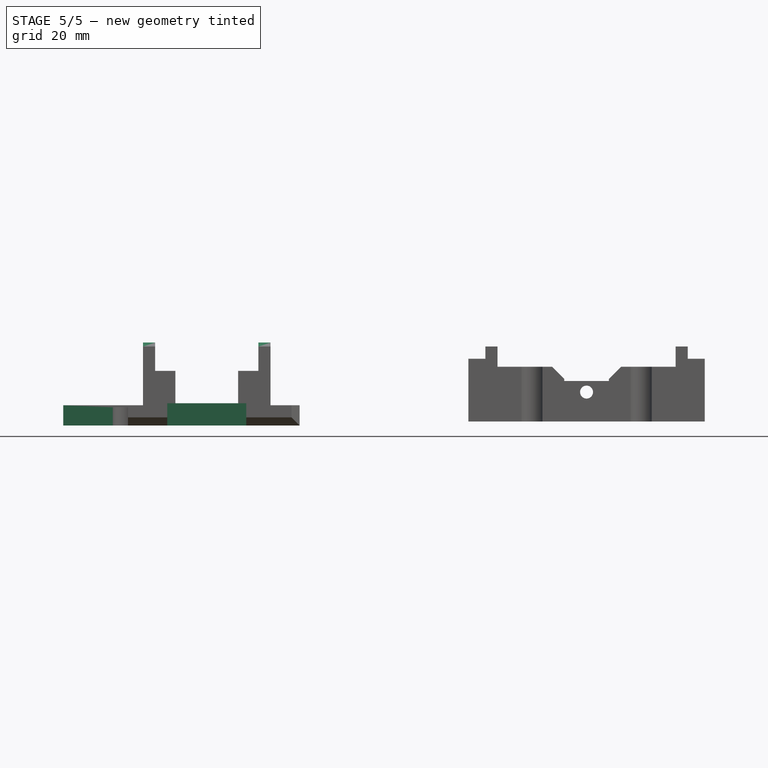
[diagram: stage 5 of 5 — front view after this stage's code; geometry added in this stage tinted green]
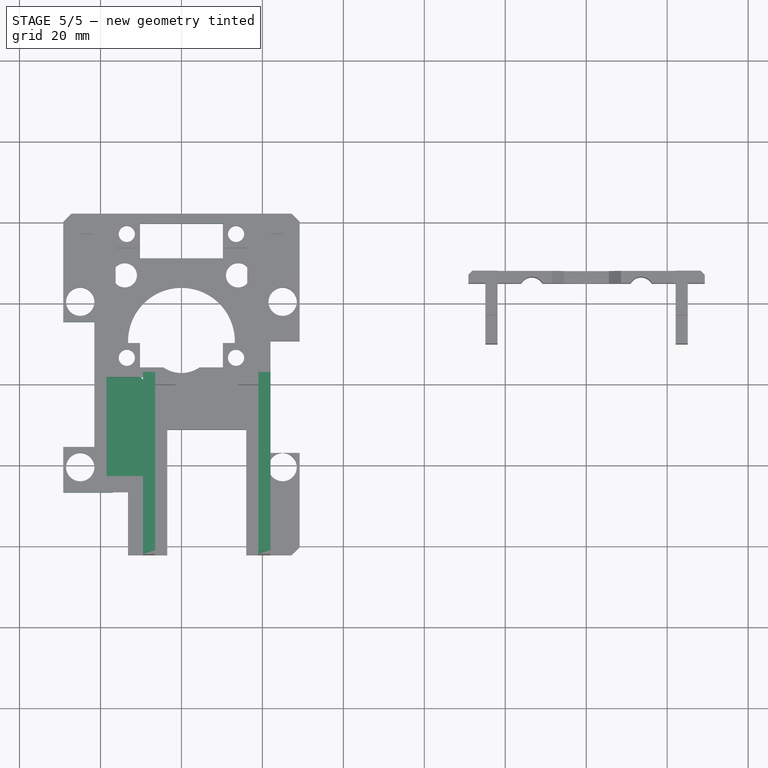
[diagram: stage 5 of 5 — top view after this stage's code; geometry added in this stage tinted green]
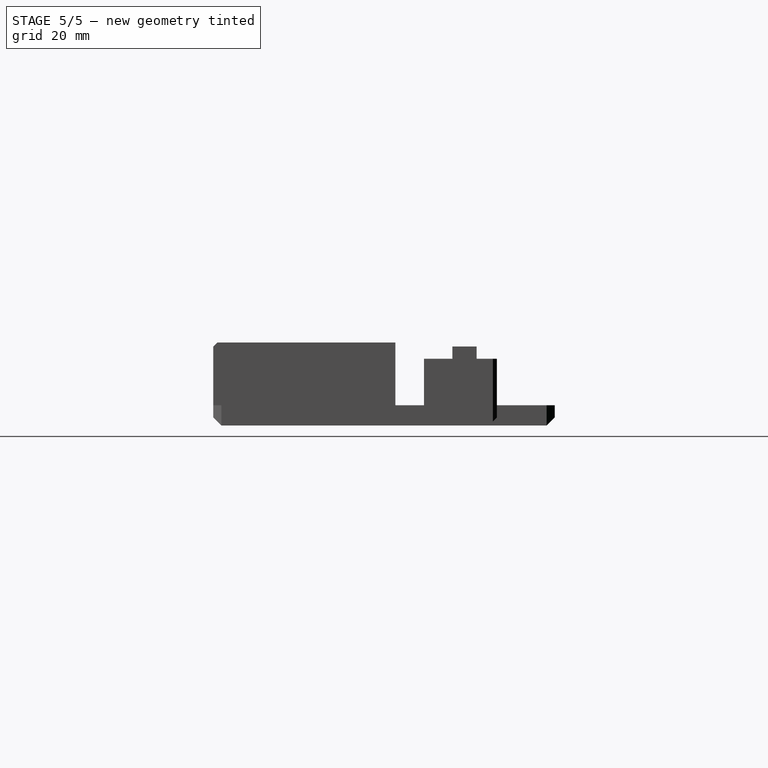
[diagram: stage 5 of 5 — right view after this stage's code; geometry added in this stage tinted green]
FEATURE [PartDesign::Chamfer] Chamfer004
  Base = -> Chamfer [Edge27,Edge3,Edge32]
  BaseFeature = -> Chamfer
  Size = 2
FEATURE [PartDesign::Chamfer] Chamfer005
  Base = -> Chamfer004 [Edge129,Edge134]
  BaseFeature = -> Chamfer004
  Size = 2
FEATURE [Sketcher::SketchObject] Sketch023
  ExternalGeometry = -> [Chamfer005]
  MapMode = 5
  Placement = pos=(22,0,0) rot=(0.57735,0.57735,0.57735;2.0944rad)
  Support = -> [Chamfer005]
  sketch-geometry (4):
    g0: LineSegment StartX=2.815 StartY=21.5 StartZ=0 EndX=-42.185 EndY=21.5 EndZ=0
    g1: LineSegment StartX=-42.185 StartY=21.5 StartZ=0 EndX=-42.185 EndY=20.5 EndZ=0
    g2: LineSegment StartX=-42.185 StartY=20.5 StartZ=0 EndX=2.815 EndY=20.5 EndZ=0
    g3: LineSegment StartX=2.815 StartY=20.5 StartZ=0 EndX=2.815 EndY=21.5 EndZ=0
  constraints (11):
    c: Coincident(g0,g1)
    c: Coincident(g1,g2)
    c: Coincident(g2,g3)
    c: Coincident(g3,g0)
    c: Horizontal(g0)
    c: Horizontal(g2)
    c: Vertical(g1)
    c: Vertical(g3)
    c: Coincident(g0,g-3)
    c: DistanceY(g1,g1) = 1
    c: Vertical(g1,g-4)
FEATURE [PartDesign::Pocket] Pocket014
  BaseFeature = -> Chamfer005
  Length = 5
  Length2 = 100
  Profile = -> Sketch023
  Refine = true
  Type = 1
FEATURE [Sketcher::SketchObject] Sketch025
  ExternalGeometry = -> [Pocket014]
  MapMode = 5
  Placement = pos=(0,0,5) rot=(0,0,1;0rad)
  Support = -> [Pocket014]
  sketch-geometry (4):
    g0: LineSegment StartX=-9.5 StartY=1.815 StartZ=0 EndX=-18.5 EndY=1.815 EndZ=0
    g1: LineSegment StartX=-18.5 StartY=1.815 StartZ=0 EndX=-18.5 EndY=-22.685 EndZ=0
    g2: LineSegment StartX=-18.5 StartY=-22.685 StartZ=0 EndX=-9.5 EndY=-22.685 EndZ=0
    g3: LineSegment StartX=-9.5 StartY=-22.685 StartZ=0 EndX=-9.5 EndY=1.815 EndZ=0
  constraints (12):
    c: Coincident(g0,g1)
    c: Coincident(g1,g2)
    c: Coincident(g2,g3)
    c: Coincident(g3,g0)
    c: Horizontal(g0)
    c: Horizontal(g2)
    c: Vertical(g1)
    c: Vertical(g3)
    c: PointOnObject(g0,g-3)
    c: DistanceX(g0,g0) = 9
    c: DistanceY(g1,g1) = 24.5
    c: DistanceY(g0,g-3) = 1
FEATURE [PartDesign::Pocket] Pocket016
  BaseFeature = -> Pocket014
  Length = 2.6
  Length2 = 100
  Profile = -> Sketch025
  Refine = true
  Type = 0
FEATURE [Sketcher::SketchObject] Sketch026
  ExternalGeometry = -> [Pocket016]
  MapMode = 5
  Placement = pos=(-9.5,0,0) rot=(0.57735,-0.57735,-0.57735;2.0944rad)
  Support = -> [Pocket016]
  constraints (2):
    c: DistanceY(g-3,g-4) = 18.1
    c: DistanceY(g-5,g-4) = 15.5
FEATURE [Sketcher::SketchObject] Sketch027
  ExternalGeometry = -> [Pocket016]
  MapMode = 5
  Placement = pos=(0,0,5.5) rot=(0,0,1;0rad)
  Support = -> [Pocket016]
  sketch-geometry (8):
    g0: LineSegment StartX=-3.5 StartY=-11.185 StartZ=0 EndX=16 EndY=-11.185 EndZ=0
    g1: LineSegment StartX=16 StartY=-11.185 StartZ=0 EndX=16 EndY=-42.185 EndZ=0
    g2: LineSegment StartX=16 StartY=-42.185 StartZ=0 EndX=-3.5 EndY=-42.185 EndZ=0
    g3: LineSegment StartX=-3.5 StartY=-42.185 StartZ=0 EndX=-3.5 EndY=-11.185 EndZ=0
    g4: LineSegment StartX=-13.195 StartY=-42.185 StartZ=0 EndX=-29.195 EndY=-42.185 EndZ=0
    g5: LineSegment StartX=-29.195 StartY=-42.185 StartZ=0 EndX=-29.195 EndY=-26.685 EndZ=0
    g6: LineSegment StartX=-29.195 StartY=-26.685 StartZ=0 EndX=-13.195 EndY=-26.685 EndZ=0
    g7: LineSegment StartX=-13.195 StartY=-26.685 StartZ=0 EndX=-13.195 EndY=-42.185 EndZ=0
  constraints (24):
    c: Coincident(g0,g1)
    c: Coincident(g1,g2)
    c: Coincident(g2,g3)
    c: Coincident(g3,g0)
    c: Horizontal(g0)
    c: Horizontal(g2)
    c: Vertical(g1)
    c: Vertical(g3)
    c: PointOnObject(g1,g-5)
    c: Coincident(g4,g5)
    c: Coincident(g5,g6)
    c: Coincident(g6,g7)
    c: Coincident(g7,g4)
    c: Horizontal(g4)
    c: Horizontal(g6)
    c: Vertical(g5)
    c: Vertical(g7)
    c: PointOnObject(g4,g-3)
    c: PointOnObject(g5,g-4)
    c: DistanceY(g1,g1) = 31
    c: DistanceX(g6,g6) = 16
    c: DistanceY(g7,g7) = 15.5
    c: DistanceX(g-5,g2) = 3
    c: DistanceX(g1,g-5) = 3
FEATURE [PartDesign::Pocket] Pocket017
  BaseFeature = -> Pocket016
  Length = 5
  Length2 = 100
  Profile = -> Sketch027
  Refine = true
  Type = 1
FEATURE [Sketcher::SketchObject] Sketch028
  ExternalGeometry = -> [Pocket017]
  MapMode = 5
  Placement = pos=(0,0,5) rot=(0,0,1;0rad)
  Support = -> [Pocket017]
  sketch-geometry (8):
    g0: LineSegment StartX=-29.195 StartY=15.435 StartZ=0 EndX=-21.5 EndY=15.435 EndZ=0
    g1: LineSegment StartX=-21.5 StartY=15.435 StartZ=0 EndX=-21.5 EndY=-15.435 EndZ=0
    g2: LineSegment StartX=-21.5 StartY=-15.435 StartZ=0 EndX=-29.195 EndY=-15.435 EndZ=0
    g3: LineSegment StartX=-29.195 StartY=-15.435 StartZ=0 EndX=-29.195 EndY=15.435 EndZ=0
    g4: LineSegment StartX=-10.25 StartY=39.715 StartZ=0 EndX=10.25 EndY=39.715 EndZ=0
    g5: LineSegment StartX=10.25 StartY=39.715 StartZ=0 EndX=10.25 EndY=31.215 EndZ=0
    g6: LineSegment StartX=10.25 StartY=31.215 StartZ=0 EndX=-10.25 EndY=31.215 EndZ=0
    g7: LineSegment StartX=-10.25 StartY=31.215 StartZ=0 EndX=-10.25 EndY=39.715 EndZ=0
  constraints (22):
    c: Coincident(g0,g1)
    c: Coincident(g1,g2)
    c: Coincident(g2,g3)
    c: Coincident(g3,g0)
    c: Horizontal(g0)
    c: Horizontal(g2)
    c: Vertical(g1)
    c: Vertical(g3)
    c: PointOnObject(g0,g-3)
    c: Coincident(g4,g5)
    c: Coincident(g5,g6)
    c: Coincident(g6,g7)
    c: Coincident(g7,g4)
    c: Horizontal(g6)
    c: Vertical(g5)
    c: Vertical(g7)
    c: Coincident(g4,g-4)
    c: Coincident(g4,g-4)
    c: DistanceX(g0,g-5) = 3
    c: DistanceY(g0,g-7) = 5
    c: DistanceY(g-6,g1) = 5
    c: DistanceY(g7,g7) = 8.5
FEATURE [PartDesign::Pocket] Pocket018
  BaseFeature = -> Pocket017
  Length = 5
  Length2 = 100
  Profile = -> Sketch028
  Refine = true
  Type = 1
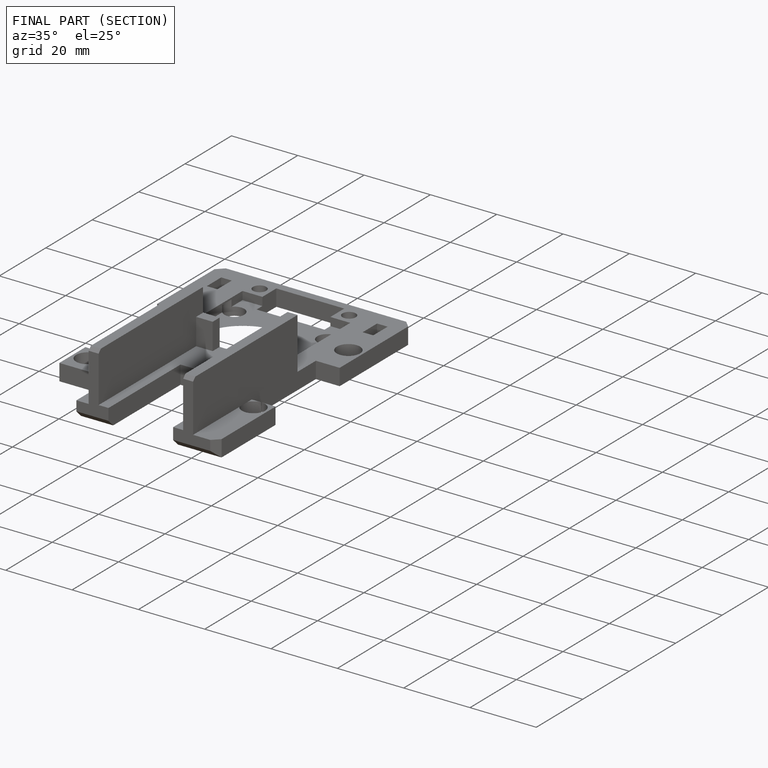
[diagram: finished part — half-section view (interior)]
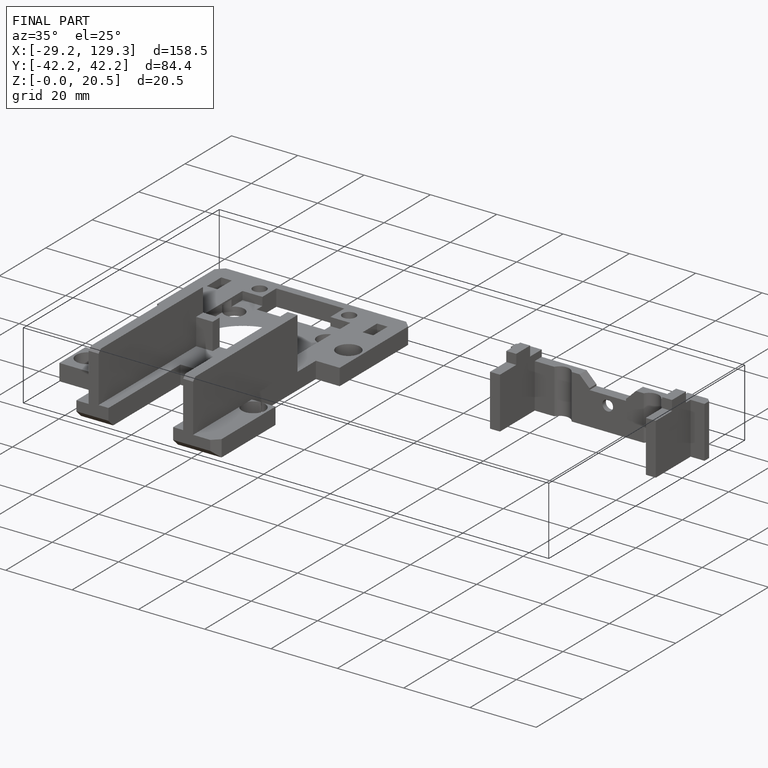
[diagram: finished part — iso view with bounding-box wireframe]
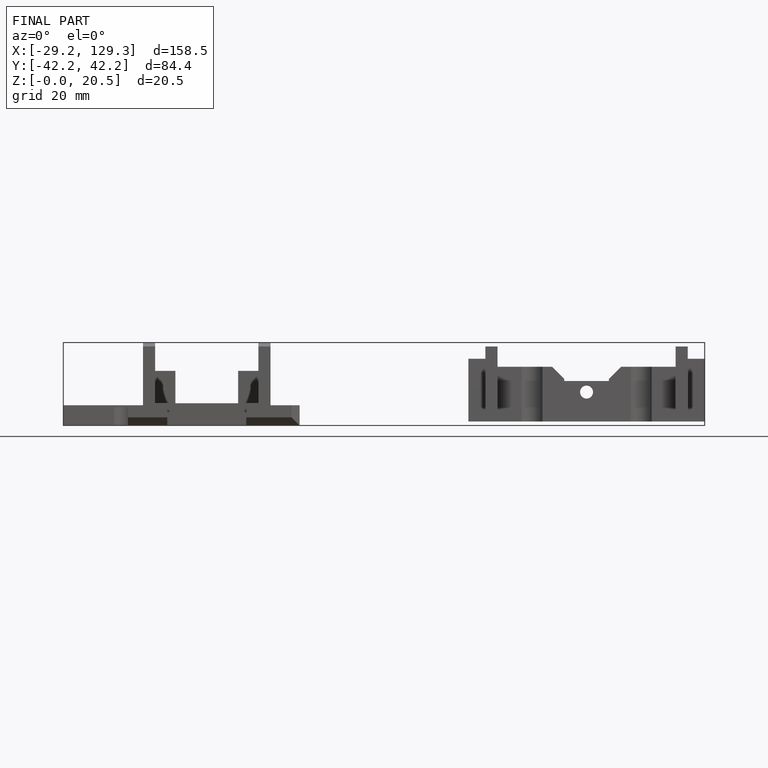
[diagram: finished part — front view with bounding-box wireframe]
